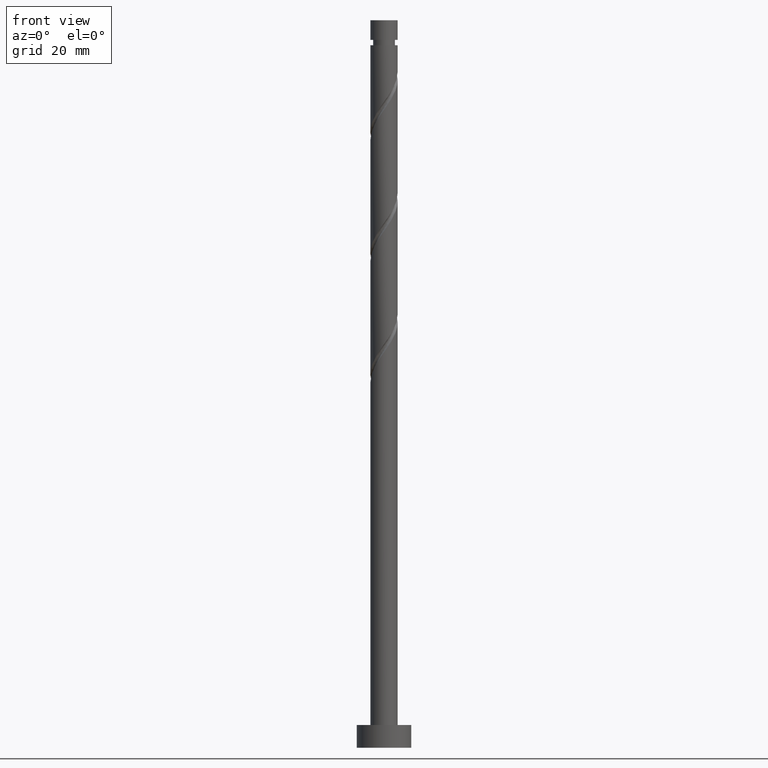
[diagram: clean part render]
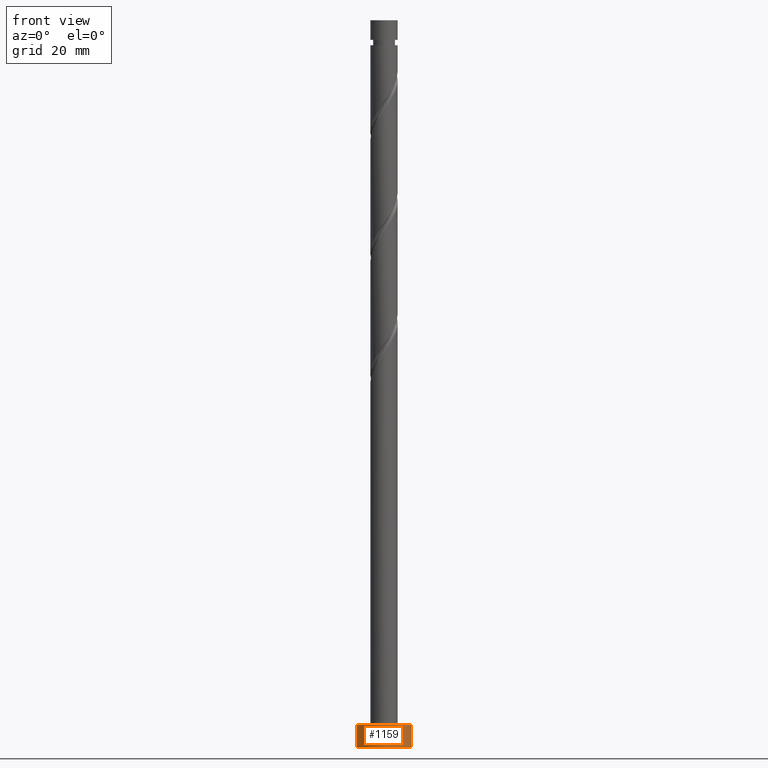
[diagram: same view with one face highlighted and labeled with its STEP entity id]
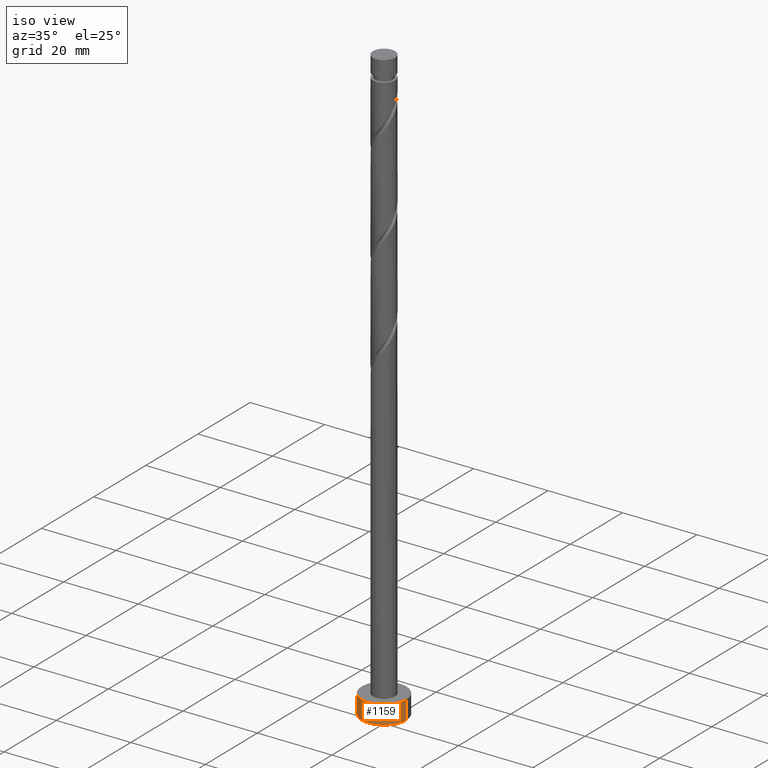
[diagram: same view with one face highlighted and labeled with its STEP entity id]
A machine part, front view. The second image highlights one B-rep face of the part: STEP entity #1159.
A second angle (iso view) of the same face is appended — the face is thin or edge-on in the first view.
In plain terms, the highlighted cylindrical surface (edge-blend (fillet) strip) has radius 6 mm, axis along (-0, -0, -1).
Its self-contained STEP definition (entity closure, byte-faithful):
#29 = ORIENTED_EDGE ( 'NONE', *, *, #1064, .T. ) ;
#34 = DIRECTION ( 'NONE',  ( 0.000000000000000000, 0.000000000000000000, 1.000000000000000000 ) ) ;
#64 = ORIENTED_EDGE ( 'NONE', *, *, #1081, .T. ) ;
#87 = DIRECTION ( 'NONE',  ( -0.000000000000000000, -0.000000000000000000, -1.000000000000000000 ) ) ;
#113 = CARTESIAN_POINT ( 'NONE',  ( 6.000000000000000888, 7.347880794884120722E-16, 5.000000000000000000 ) ) ;
#211 = CARTESIAN_POINT ( 'NONE',  ( -6.000000000000000888, 0.000000000000000000, 0.000000000000000000 ) ) ;
#218 = CARTESIAN_POINT ( 'NONE',  ( -6.000000000000000888, 0.000000000000000000, 5.000000000000000000 ) ) ;
#346 = AXIS2_PLACEMENT_3D ( 'NONE', #704, #799, #809 ) ;
#353 = VERTEX_POINT ( 'NONE', #113 ) ;
#458 = VERTEX_POINT ( 'NONE', #634 ) ;
#462 = EDGE_CURVE ( 'NONE', #353, #458, #1366, .T. ) ;
#500 = DIRECTION ( 'NONE',  ( -0.000000000000000000, -0.000000000000000000, -1.000000000000000000 ) ) ;
#511 = LINE ( 'NONE', #218, #1371 ) ;
#518 = AXIS2_PLACEMENT_3D ( 'NONE', #889, #1243, #1219 ) ;
#535 = ORIENTED_EDGE ( 'NONE', *, *, #1578, .F. ) ;
#634 = CARTESIAN_POINT ( 'NONE',  ( 6.000000000000000888, 7.347880794884120722E-16, 0.000000000000000000 ) ) ;
#704 = CARTESIAN_POINT ( 'NONE',  ( 0.000000000000000000, 0.000000000000000000, 0.000000000000000000 ) ) ;
#708 = DIRECTION ( 'NONE',  ( 1.000000000000000000, 0.000000000000000000, 0.000000000000000000 ) ) ;
#711 = VERTEX_POINT ( 'NONE', #211 ) ;
#799 = DIRECTION ( 'NONE',  ( 0.000000000000000000, 0.000000000000000000, 1.000000000000000000 ) ) ;
#809 = DIRECTION ( 'NONE',  ( 1.000000000000000000, 0.000000000000000000, 0.000000000000000000 ) ) ;
#880 = FACE_OUTER_BOUND ( 'NONE', #881, .T. ) ;
#881 = EDGE_LOOP ( 'NONE', ( #890, #535, #29, #64 ) ) ;
#889 = CARTESIAN_POINT ( 'NONE',  ( 0.000000000000000000, 0.000000000000000000, 5.000000000000000000 ) ) ;
#890 = ORIENTED_EDGE ( 'NONE', *, *, #462, .F. ) ;
#923 = AXIS2_PLACEMENT_3D ( 'NONE', #1535, #34, #708 ) ;
#947 = VECTOR ( 'NONE', #500, 1000.000000000000000 ) ;
#992 = CIRCLE ( 'NONE', #923, 6.000000000000000888 ) ;
#1064 = EDGE_CURVE ( 'NONE', #1312, #711, #511, .T. ) ;
#1081 = EDGE_CURVE ( 'NONE', #711, #458, #1570, .T. ) ;
#1120 = CYLINDRICAL_SURFACE ( 'NONE', #518, 6.000000000000000888 ) ;
#1123 = CARTESIAN_POINT ( 'NONE',  ( 6.000000000000000888, 7.347880794884120722E-16, 5.000000000000000000 ) ) ;
#1159 = ADVANCED_FACE ( 'NONE', ( #880 ), #1120, .T. ) ;
#1176 = CARTESIAN_POINT ( 'NONE',  ( -6.000000000000000888, 0.000000000000000000, 5.000000000000000000 ) ) ;
#1219 = DIRECTION ( 'NONE',  ( -1.000000000000000000, 0.000000000000000000, 0.000000000000000000 ) ) ;
#1243 = DIRECTION ( 'NONE',  ( -0.000000000000000000, -0.000000000000000000, -1.000000000000000000 ) ) ;
#1312 = VERTEX_POINT ( 'NONE', #1176 ) ;
#1366 = LINE ( 'NONE', #1123, #947 ) ;
#1371 = VECTOR ( 'NONE', #87, 1000.000000000000000 ) ;
#1535 = CARTESIAN_POINT ( 'NONE',  ( 0.000000000000000000, 0.000000000000000000, 5.000000000000000000 ) ) ;
#1570 = CIRCLE ( 'NONE', #346, 6.000000000000000888 ) ;
#1578 = EDGE_CURVE ( 'NONE', #1312, #353, #992, .T. ) ;